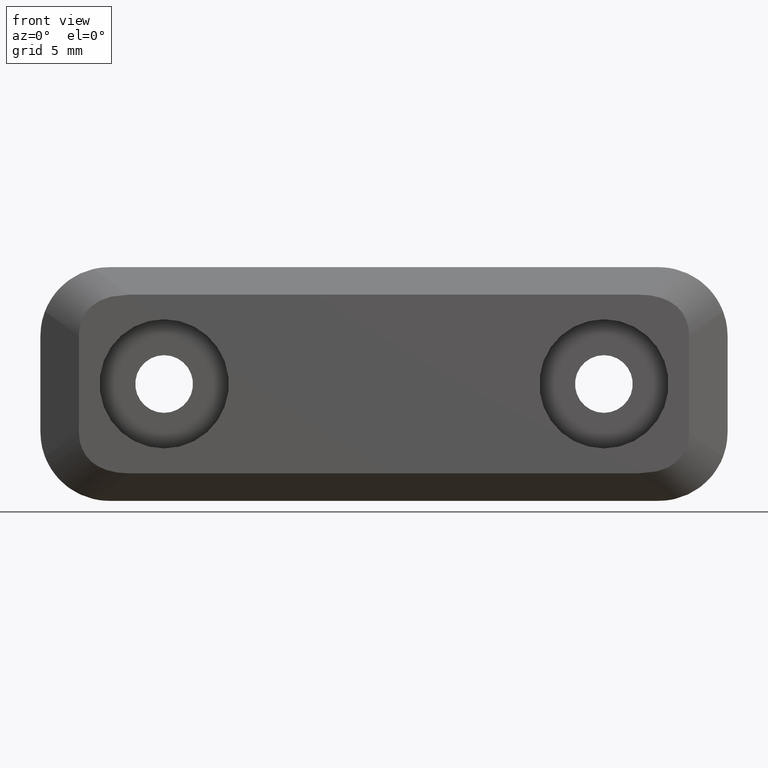
[diagram: clean part render]
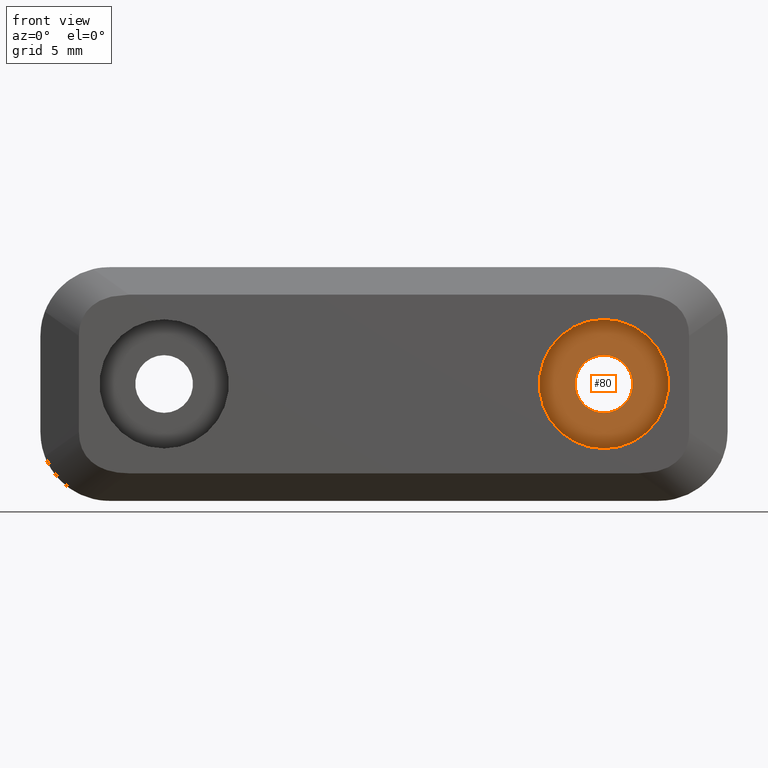
[diagram: same view with one face highlighted and labeled with its STEP entity id]
A machine part, front view. The second image highlights one B-rep face of the part: STEP entity #80.
In plain terms, the highlighted planar face has unit normal (0, 1, 0).
Its self-contained STEP definition (entity closure, byte-faithful):
#80=ADVANCED_FACE('',(#154,#155),#153,.F.);
#153=PLANE('',#417);
#154=FACE_OUTER_BOUND('',#418,.T.);
#155=FACE_BOUND('',#419,.T.);
#414=CARTESIAN_POINT('',(6.23123344531E+00,-3.60000000000E+00,-6.11000000000E+00));
#415=DIRECTION('',(0.00000000000E+00,1.00000000000E+00,0.00000000000E+00));
#416=DIRECTION('',(0.00000000000E+00,0.00000000000E+00,1.00000000000E+00));
#417=AXIS2_PLACEMENT_3D('',#414,#415,#416);
#418=EDGE_LOOP('',(#559,#560));
#419=EDGE_LOOP('',(#561,#562));
#559=ORIENTED_EDGE('',*,*,#702,.T.);
#560=ORIENTED_EDGE('',*,*,#703,.T.);
#561=ORIENTED_EDGE('',*,*,#704,.F.);
#562=ORIENTED_EDGE('',*,*,#705,.F.);
#702=EDGE_CURVE('',#911,#912,#913,.T.);
#703=EDGE_CURVE('',#912,#911,#919,.T.);
#704=EDGE_CURVE('',#925,#926,#927,.T.);
#705=EDGE_CURVE('',#926,#925,#933,.T.);
#911=VERTEX_POINT('',#1368);
#912=VERTEX_POINT('',#1369);
#913=CIRCLE('',#1373,4.70000000000E+00);
#919=CIRCLE('',#1377,4.70000000000E+00);
#925=VERTEX_POINT('',#1378);
#926=VERTEX_POINT('',#1379);
#927=CIRCLE('',#1383,2.10000000000E+00);
#933=CIRCLE('',#1387,2.10000000000E+00);
#1368=CARTESIAN_POINT('',(1.60000000000E+01,-3.60000000000E+00,-4.70000000000E+00));
#1369=CARTESIAN_POINT('',(1.60000000000E+01,-3.60000000000E+00,4.70000000000E+00));
#1370=CARTESIAN_POINT('',(1.60000000000E+01,-3.60000000000E+00,0.00000000000E+00));
#1371=DIRECTION('',(0.00000000000E+00,-1.00000000000E+00,-0.00000000000E+00));
#1372=DIRECTION('',(-1.22460635382E-16,0.00000000000E+00,-1.00000000000E+00));
#1373=AXIS2_PLACEMENT_3D('',#1370,#1371,#1372);
#1374=CARTESIAN_POINT('',(1.60000000000E+01,-3.60000000000E+00,0.00000000000E+00));
#1375=DIRECTION('',(0.00000000000E+00,-1.00000000000E+00,-0.00000000000E+00));
#1376=DIRECTION('',(-1.22460635382E-16,0.00000000000E+00,-1.00000000000E+00));
#1377=AXIS2_PLACEMENT_3D('',#1374,#1375,#1376);
#1378=CARTESIAN_POINT('',(1.60000000000E+01,-3.60000000000E+00,2.10000000000E+00));
#1379=CARTESIAN_POINT('',(1.60000000000E+01,-3.60000000000E+00,-2.10000000000E+00));
#1380=CARTESIAN_POINT('',(1.60000000000E+01,-3.60000000000E+00,0.00000000000E+00));
#1381=DIRECTION('',(0.00000000000E+00,-1.00000000000E+00,-0.00000000000E+00));
#1382=DIRECTION('',(-1.22460635382E-16,0.00000000000E+00,-1.00000000000E+00));
#1383=AXIS2_PLACEMENT_3D('',#1380,#1381,#1382);
#1384=CARTESIAN_POINT('',(1.60000000000E+01,-3.60000000000E+00,0.00000000000E+00));
#1385=DIRECTION('',(0.00000000000E+00,-1.00000000000E+00,-0.00000000000E+00));
#1386=DIRECTION('',(-1.22460635382E-16,0.00000000000E+00,-1.00000000000E+00));
#1387=AXIS2_PLACEMENT_3D('',#1384,#1385,#1386);